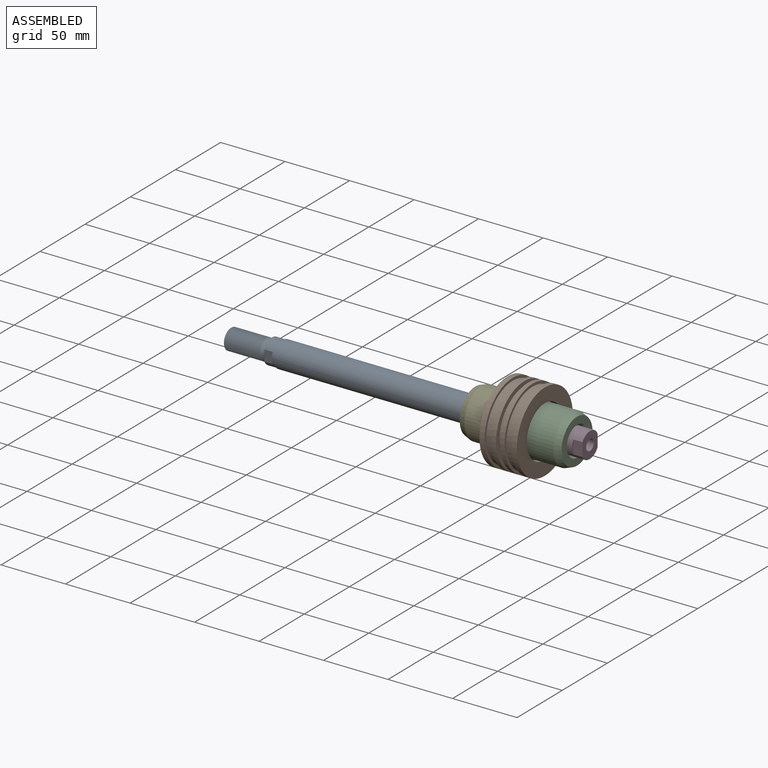
[diagram: assembled view]
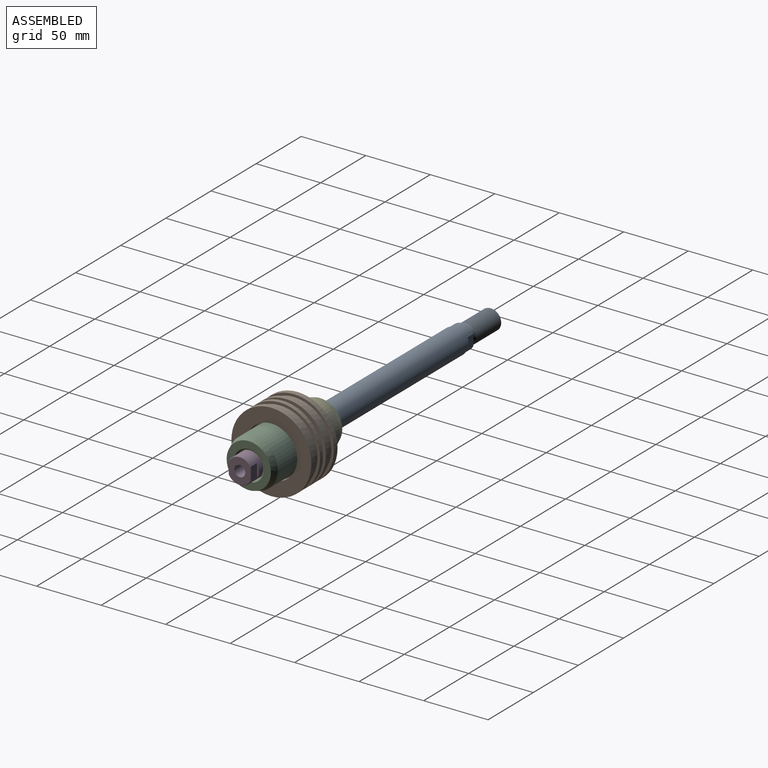
[diagram: assembled view, second angle]
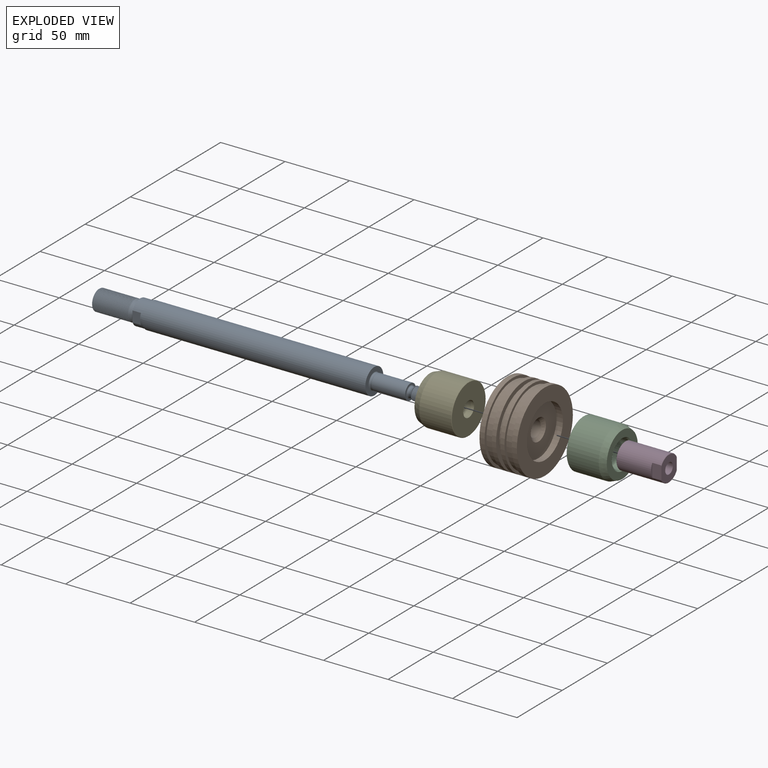
[diagram: exploded view]
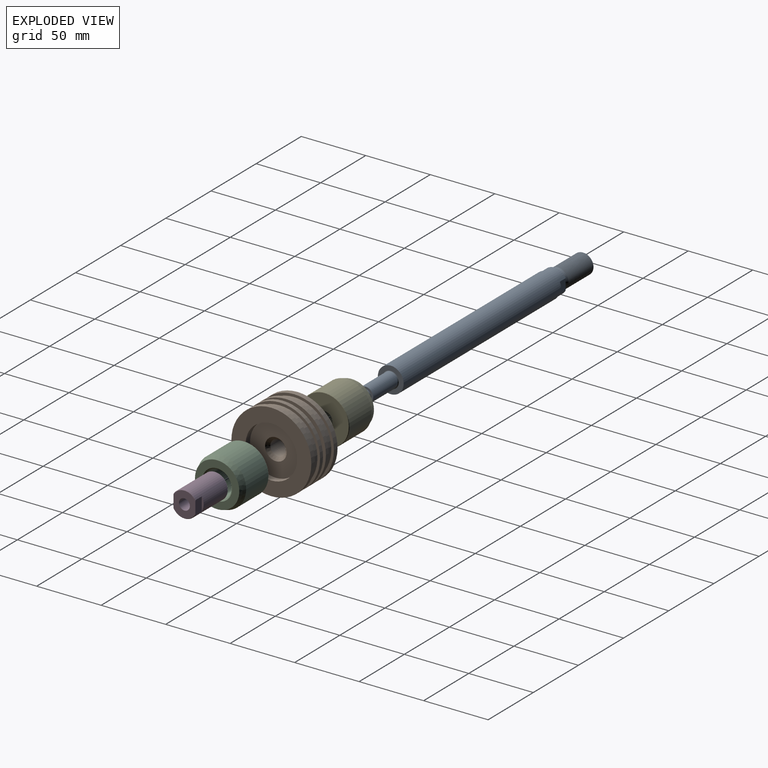
[diagram: exploded view, second angle]
ASSEMBLY  parts=5 mates=4
PART A: 37 faces, bbox 263.6x20.3x20.3 mm
  f0: plane 19x17mm, normal (-1,0,0), area 88.2mm2, adj f17,f18,f33,f35
  f1: cylinder r=5mm len=16.95mm, axis (1,0,0), area 66.9mm2, adj f22,f29,f30,f32
  f2: plane 15.1x15mm, normal (-1,0,0), area 175.7mm2, adj f23,f24,f25,f27
  f3: cylinder r=8mm len=27.95mm, axis (1,0,0), area 60.5mm2, adj f21,f24,f25,f27
  f4: cone r=3.96mm half-angle=30deg, axis (1,0,0), area 58.7mm2, adj f5,f31
  f5: torus R=4.65mm, axis (1,0,0), area 10.2mm2, adj f4,f6
  f6: cylinder r=3.85mm len=7.7mm, axis (1,0,0), area 19.2mm2, adj f5,f7
  f7: torus R=4.65mm, axis (1,0,0), area 32.7mm2, adj f6,f8
  f8: plane 12x12mm, normal (1,0,0), area 45.2mm2, adj f7,f9
  f9: cylinder r=6mm len=26mm, axis (1,0,0), area 980.2mm2, adj f8,f10
  f10: cone r=5.88mm half-angle=30deg, axis (1,0,0), area 8.9mm2, adj f9,f11
  f11: torus R=6.4mm, axis (1,0,0), area 11.5mm2, adj f10,f12
  f12: cylinder r=5.8mm len=11.6mm, axis (1,0,0), area 32.5mm2, adj f11,f13
  f13: torus R=6.4mm, axis (1,0,0), area 35.6mm2, adj f12,f14
  f14: plane 20x20mm, normal (1,0,0), area 185.5mm2, adj f13,f15
  f15: cylinder r=10mm len=173mm, axis (1,0,0), area 10869.9mm2, adj f14,f16
  f16: plane 20x20mm, normal (-1,0,0), area 30.6mm2, adj f15,f17
  f17: cylinder r=9.5mm len=19mm, axis (1,0,0), area 393mm2, adj f0,f16,f33,f34,f35,f36
  f18: torus R=7.65mm, axis (1,0,0), area 56.4mm2, adj f0,f19
  f19: cylinder r=6.85mm len=13.7mm, axis (1,0,0), area 34.2mm2, adj f18,f20
  f20: torus R=7.65mm, axis (1,0,0), area 18.1mm2, adj f19,f21
  f21: cone r=8mm half-angle=30deg, axis (-1,0,0), area 98mm2, adj f3,f20,f26
  f22: plane 9.7x9.65mm, normal (1,0,0), area 69.1mm2, adj f1,f28,f29,f30
  f23: bspline ~28.92x17.23mm, area 369.3mm2, adj f2,f24,f25,f26
  f24: bspline ~28.98x18.48mm, area 854.2mm2, adj f2,f3,f23,f26,f27
  f25: bspline ~28.65x18.48mm, area 852.5mm2, adj f2,f3,f23,f26,f27
  f26: plane 16.3x16.3mm, normal (-1,0,0), area 15.3mm2, adj f21,f23,f24,f25
  f27: cone r=8mm half-angle=63.4deg, axis (1,0,0), area 11.2mm2, adj f2,f3,f24,f25
  f28: bspline ~17.92x10.3mm, area 134.1mm2, adj f22,f29,f30,f31
  f29: bspline ~17.98x11.55mm, area 317.7mm2, adj f1,f22,f28,f31,f32
  f30: bspline ~17.65x11.55mm, area 317.6mm2, adj f1,f22,f28,f31,f32
  f31: plane 10.05x10.05mm, normal (1,0,0), area 15.5mm2, adj f4,f28,f29,f30,f32
  f32: cone r=5mm half-angle=63.4deg, axis (1,0,0), area 6.8mm2, adj f1,f29,f30,f31
  f33: plane 8.49x6.5mm, normal (0,1,0), area 55.2mm2, adj f0,f17,f34
  f34: plane 8.49x1mm, normal (-1,0,0), area 5.7mm2, adj f17,f33
  f35: plane 8.49x6.5mm, normal (0,-1,0), area 55.2mm2, adj f0,f17,f36
  f36: plane 8.49x1mm, normal (-1,0,0), area 5.7mm2, adj f17,f35
PART B: 22 faces, bbox 29x62x62 mm
  f0: cylinder r=25.75mm len=51.5mm, axis (-1,0,0), area 809mm2, adj f1,f20
  f1: plane 51.5x51.5mm, normal (-1,0,0), area 1942mm2, adj f0,f21
  f2: cylinder r=6mm len=15.9mm, axis (-1,0,0), area 599.4mm2, adj f3,f21
  f3: cone r=8.4mm half-angle=45deg, axis (1,0,0), area 153.5mm2, adj f2,f4
  f4: plane 40x40mm, normal (1,0,0), area 1035mm2, adj f3,f5
  f5: cylinder r=20mm len=40mm, axis (-1,0,0), area 628.3mm2, adj f4,f6
  f6: plane 62x62mm, normal (1,0,0), area 1762.4mm2, adj f5,f7
  f7: cylinder r=31mm len=62mm, axis (-1,0,0), area 779.1mm2, adj f6,f8
  f8: plane 62x62mm, normal (-1,0,0), area 377mm2, adj f7,f9
  f9: cylinder r=29mm len=58mm, axis (-1,0,0), area 1020.4mm2, adj f8,f10
  f10: plane 62x62mm, normal (1,0,0), area 377mm2, adj f9,f11
  f11: cylinder r=31mm len=62mm, axis (-1,0,0), area 642.8mm2, adj f10,f12
  f12: plane 62x62mm, normal (-1,0,0), area 643.2mm2, adj f11,f13
  f13: cylinder r=27.5mm len=55mm, axis (-1,0,0), area 552.9mm2, adj f12,f14
  f14: plane 62x62mm, normal (1,0,0), area 643.2mm2, adj f13,f15
  f15: cylinder r=31mm len=62mm, axis (-1,0,0), area 642.8mm2, adj f14,f16
  f16: plane 62x62mm, normal (-1,0,0), area 377mm2, adj f15,f17
  f17: cylinder r=29mm len=58mm, axis (-1,0,0), area 1020.4mm2, adj f16,f18
  f18: plane 62x62mm, normal (1,0,0), area 377mm2, adj f17,f19
  f19: cylinder r=31mm len=62mm, axis (-1,0,0), area 779.1mm2, adj f18,f20
  f20: plane 62x62mm, normal (-1,0,0), area 936mm2, adj f0,f19
  f21: cone r=6mm half-angle=45deg, axis (-1,0,0), area 39.5mm2, adj f1,f2
PART C: 9 faces, bbox 38x30x38 mm
  f0: cylinder r=19mm len=38mm, axis (0,1,0), area 2948.7mm2, adj f3,f8
  f1: plane 34.36x34.36mm, normal (0,-1,0), area 511.8mm2, adj f3,f7
  f2: plane 37.4x37.4mm, normal (0,1,0), area 985.5mm2, adj f4,f8
  f3: cone r=17.18mm half-angle=20deg, axis (0,1,0), area 604.8mm2, adj f0,f1
  f4: cylinder r=6mm len=12mm, axis (0,-1,0), area 226.2mm2, adj f2,f5
  f5: plane 21x21mm, normal (0,-1,0), area 233.3mm2, adj f4,f6
  f6: cylinder r=10.5mm len=23mm, axis (0,-1,0), area 1517.4mm2, adj f5,f7
  f7: cone r=10.5mm half-angle=45deg, axis (0,-1,0), area 97.7mm2, adj f1,f6
  f8: cone r=19mm half-angle=45deg, axis (0,-1,0), area 50.2mm2, adj f0,f2
PART D: 11 faces, bbox 20x34x20 mm
  f0: plane 19.4x17mm, normal (0,1,0), area 223.7mm2, adj f3,f5,f7,f8,f9
  f1: cylinder r=10mm len=33.4mm, axis (0,1,0), area 1949.9mm2, adj f3,f4,f5,f6,f8,f9,f10
  f2: plane 19.4x19.4mm, normal (0,-1,0), area 238.8mm2, adj f7,f10
  f3: plane 10.55x7.01mm, normal (-1,0,0), area 73.6mm2, adj f0,f1,f4,f8,f9
  f4: plane 10.54x1.5mm, normal (0,1,0), area 10.7mm2, adj f1,f3
  f5: plane 10.55x7.01mm, normal (1,0,0), area 73.6mm2, adj f0,f1,f6,f8,f9
  f6: plane 10.54x1.5mm, normal (0,1,0), area 10.7mm2, adj f1,f5
  f7: cylinder r=4.25mm len=34mm, axis (0,-1,0), area 907.9mm2, adj f0,f2
  f8: cone r=10mm half-angle=45deg, axis (0,-1,0), area 8.7mm2, adj f0,f1,f3,f5
  f9: cone r=10mm half-angle=45deg, axis (0,-1,0), area 8.7mm2, adj f0,f1,f3,f5
  f10: cone r=9.7mm half-angle=45deg, axis (0,1,0), area 26.3mm2, adj f1,f2
PART E: same geometry as C
PLACE A at identity fixed
PLACE B t=(197,0,0)mm
PLACE C rot(axis=(-0.58,0.58,0.58),120deg) t=(206.5,0,0)mm
PLACE D rot(axis=(0.71,0.71,0),180deg) t=(246.5,0,0)mm
PLACE E rot(axis=(0.58,0.58,-0.58),120deg) t=(187.5,0,0)mm
MATE fastened E.f4 <-> A.f1  axis (-1,0,0) through (181.5,0,0)mm
MATE fastened B.f0 <-> E.f4  axis (-1,0,0) through (187.5,0,0)mm
MATE fastened C.f4 <-> B.f0  axis (-1,0,0) through (206.5,0,0)mm
MATE fastened D.f7 <-> C.f4  axis (-1,0,0) through (212.5,0,0)mm
